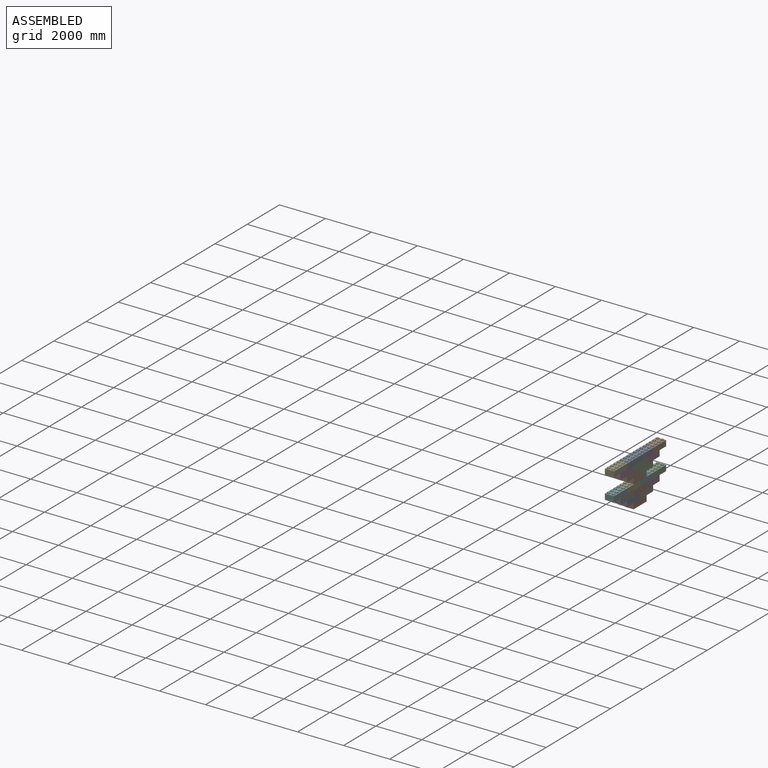
[diagram: assembled view]
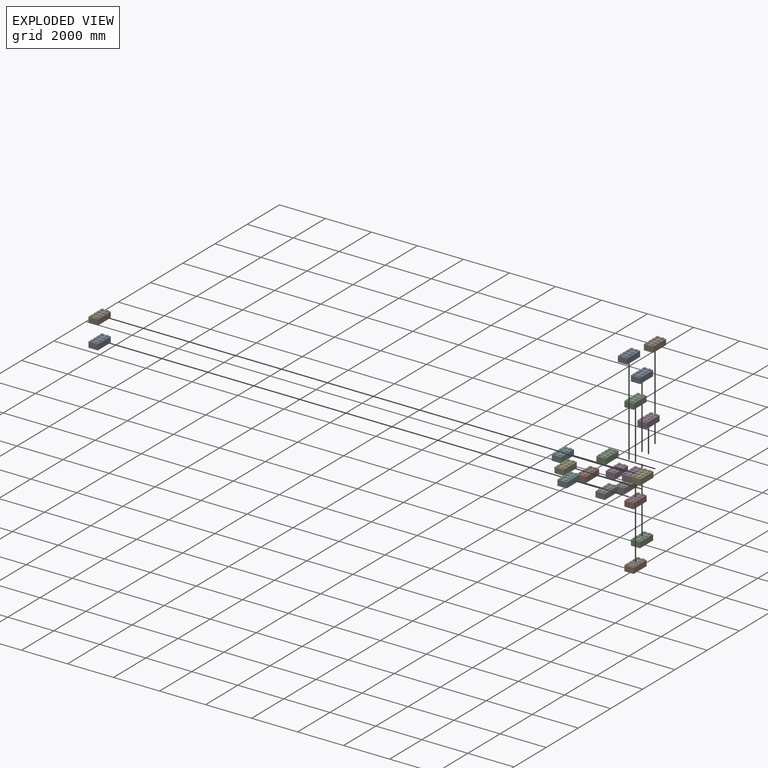
[diagram: exploded view]
GUIDED TOUR — MATED ASSEMBLY (Onshape document 4910fcf96426b830cf68da31, AutoMate assembly 4910fcf96426b830cf68da31_169cb95e6ca24b841145fe51_fd81afee6534b060b8154826_default)

This assembly has 20 components, labeled P0..P19 below (a component is one placed occurrence of a part; the same part can appear more than once), held together by 18 mates. A mate is a constraint between two components; its type names the relative motion it leaves free:
  PLANAR — leaves sliding in the plane through the listed point (normal = the listed direction) and rotation about that normal free.
Axis/direction vectors are unit vectors and 'through' points are millimeter coordinates, both in the assembly's world frame.

MATES
  1. PLANAR "Planar 8": P12 <-> P7, direction (0.000, 0.000, -1.000) through (38.89, 1657.74, 1354.56) mm
  2. PLANAR "Planar 9": P5 <-> P6, direction (0.000, 0.000, -1.000) through (38.89, 850.02, 1354.56) mm
  3. PLANAR "Planar 4": P9 <-> P10, direction (0.000, 0.000, 1.000) through (40.08, 1655.93, 2087.92) mm
  4. PLANAR "Planar 1": P2 <-> P1, direction (0.000, 0.000, -1.000) through (40.08, 2463.65, 1844.08) mm
  5. PLANAR "Planar 2": P16 <-> P15, direction (0.000, 0.000, -1.000) through (38.89, 1657.74, 866.88) mm
  6. PLANAR "Planar 2": P9 <-> P1, direction (0.000, 0.000, -1.000) through (40.08, 1655.93, 1844.08) mm
  7. PLANAR "Planar 1": P14 <-> P15, direction (0.000, 0.000, -1.000) through (38.89, 2465.46, 866.88) mm
  8. PLANAR "Planar 9": P4 <-> P19, direction (0.000, 0.000, -1.000) through (40.08, 848.21, 2331.76) mm
  9. PLANAR "Planar 5": P9 <-> P9, direction (0.000, 0.000, 1.000) through (40.08, 1655.93, 2087.92) mm
  10. PLANAR "Planar 7": P13 <-> P7, direction (0.000, 0.000, -1.000) through (38.89, 2465.46, 1354.56) mm
  11. PLANAR "Planar 3": P2 <-> P3, direction (0.000, 0.000, 1.000) through (40.08, 2463.65, 2087.92) mm
  12. PLANAR "Planar 7": P0 <-> P10, direction (0.000, 0.000, -1.000) through (40.08, 2463.65, 2331.76) mm
  13. PLANAR "Planar 8": P8 <-> P10, direction (0.000, 0.000, -1.000) through (40.08, 1655.93, 2331.76) mm
  14. PLANAR "Planar 6": P17 <-> P3, direction (0.000, 0.000, -1.000) through (40.08, 3271.37, 2331.76) mm
  15. PLANAR "Planar 6": P18 <-> P11, direction (0.000, 0.000, -1.000) through (38.89, 3273.18, 1354.56) mm
  16. PLANAR "Planar 5": P16 <-> P16, direction (0.000, 0.000, 1.000) through (38.89, 1657.74, 1110.72) mm
  17. PLANAR "Planar 4": P16 <-> P7, direction (0.000, 0.000, 1.000) through (38.89, 1657.74, 1110.72) mm
  18. PLANAR "Planar 3": P14 <-> P11, direction (0.000, 0.000, 1.000) through (38.89, 2465.46, 1110.72) mm

ASSEMBLY ORDER
  1. P15 — the base component [order verified]
  2. P14 [order verified]
  3. P16 [order verified]
  4. P6 [order verified]
  5. P7 [order verified]
  6. P11 [order verified]
  7. P5 [order verified]
  8. P12 [order verified]
  9. P13 [order verified]
  10. P18 [order verified]
  11. P1 [order verified]
  12. P2 [order verified]
  13. P9 [order verified]
  14. P3 [order verified]
  15. P10 [order verified]
  16. P19 [order verified]
  17. P0 [order verified]
  18. P4 [order verified]
  19. P8 [order verified]
  20. P17 [order verified]
Order-tag legend:
  [order verified] — this step's position reverses a verified removal order: the component was checked to insert without passing through the ones already placed.

Of the 20 components, 20 carry the full construction recipe — the FeatureScript program that regenerates the part's solid from scratch; the rest are supplied as boundary geometry only.
Because this assembly has more than 12 components, the tour below covers the 12 most significant ones individually (every recipe-attached component first, then the largest by part volume), in assembly order; the remaining 8 are summarized together in a grouped section at the end.
Each toured component is shown spotlighted twice — in the assembled view, then in the exploded view, where a leader line traces a displaced component back to its assembled socket (saturated green if recipe-attached, orange if geometry-only; every other component desaturated gray) — followed by its recipe or geometry summary and the mates that hold it.
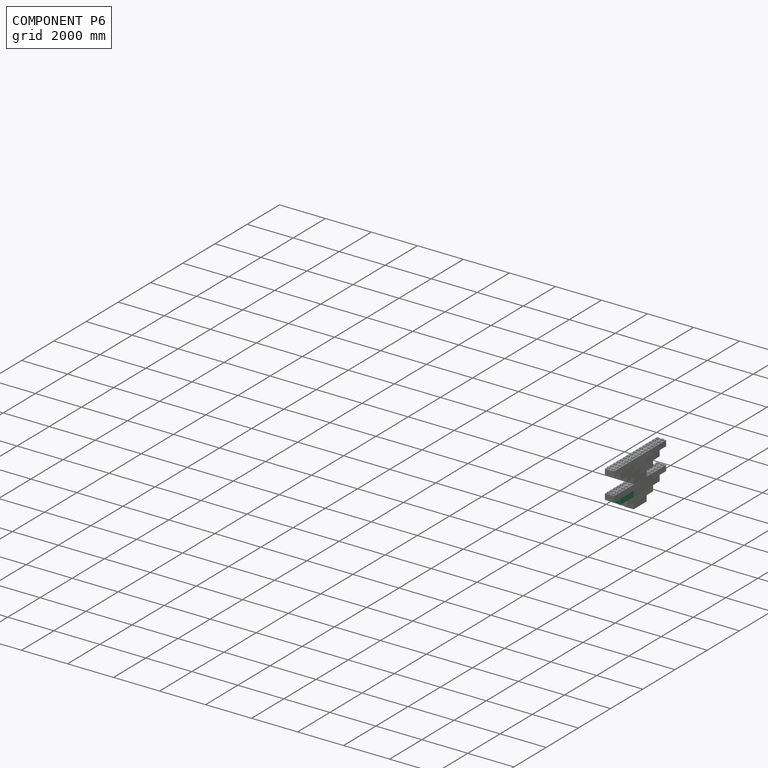
[diagram: component P6 — assembled]
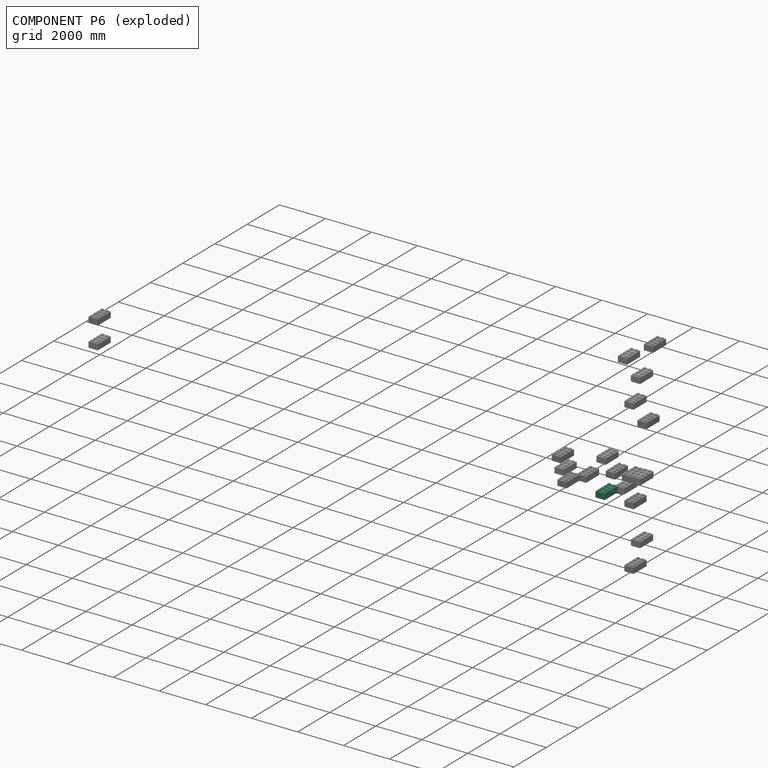
[diagram: component P6 — exploded]
COMPONENT P6 — same part as P0 (CADFS 00433519); its construction recipe is shown at P0.
Held by: PLANAR mate "Planar 9" to P5.
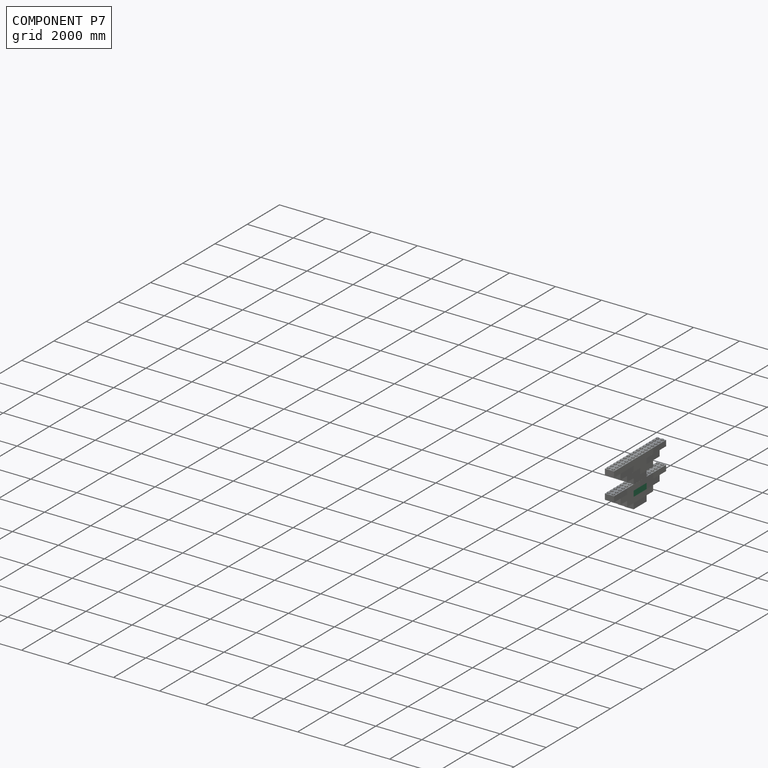
[diagram: component P7 — assembled]
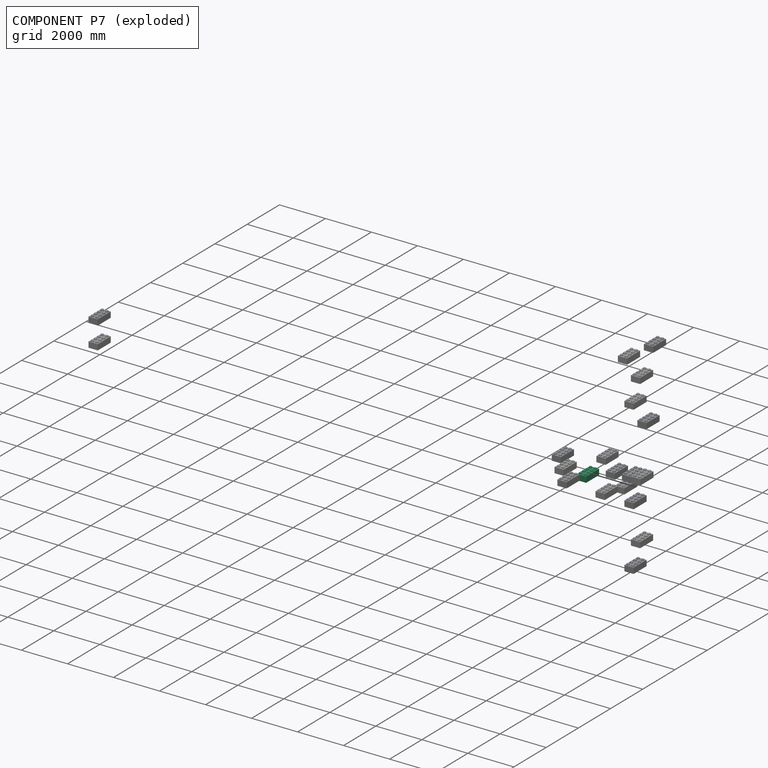
[diagram: component P7 — exploded]
COMPONENT P7 — same part as P0 (CADFS 00433519); its construction recipe is shown at P0.
Held by: PLANAR mate "Planar 8" to P12; PLANAR mate "Planar 7" to P13; PLANAR mate "Planar 4" to P16.
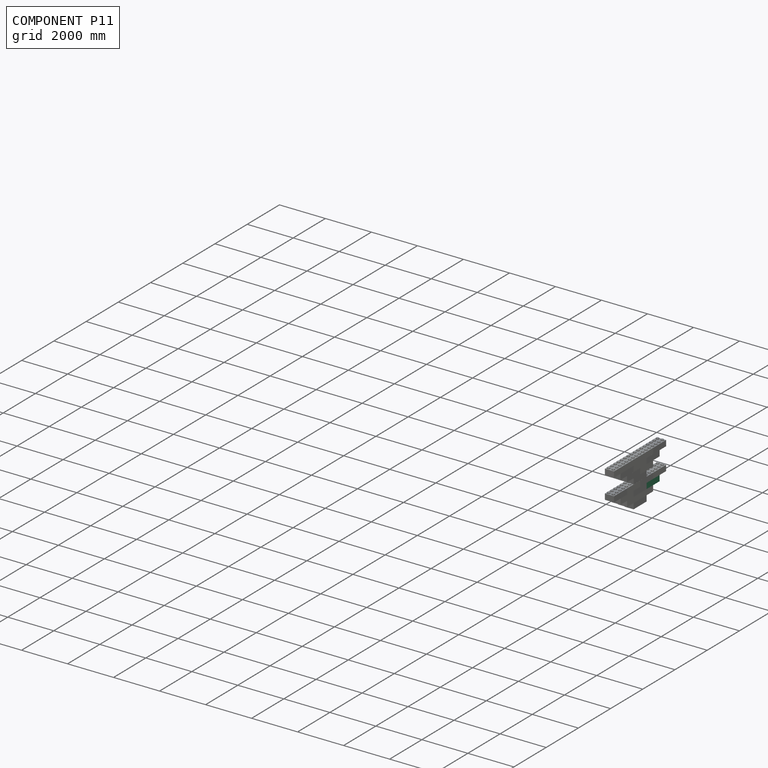
[diagram: component P11 — assembled]
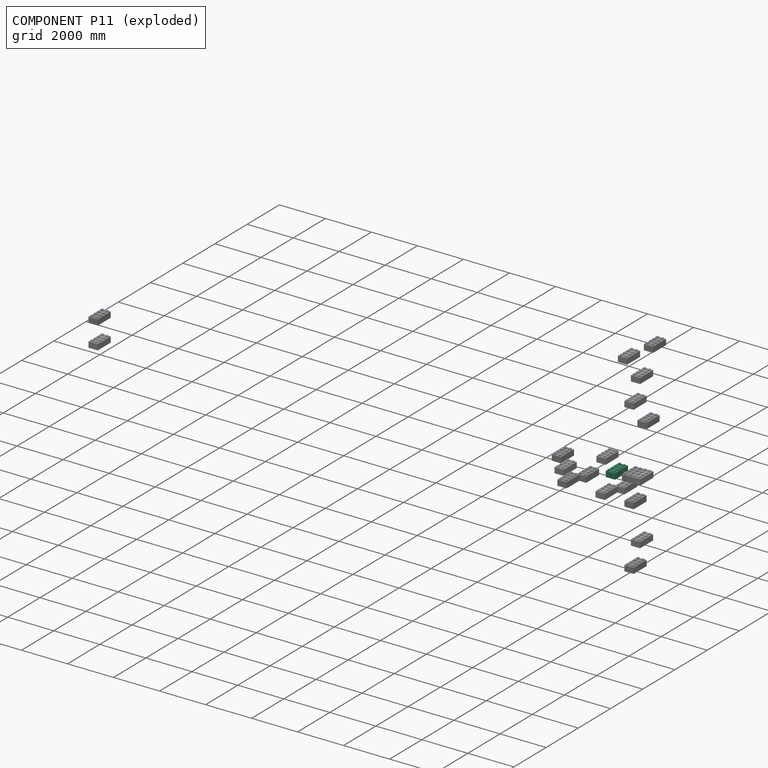
[diagram: component P11 — exploded]
COMPONENT P11 — same part as P0 (CADFS 00433519); its construction recipe is shown at P0.
Held by: PLANAR mate "Planar 6" to P18; PLANAR mate "Planar 3" to P14.
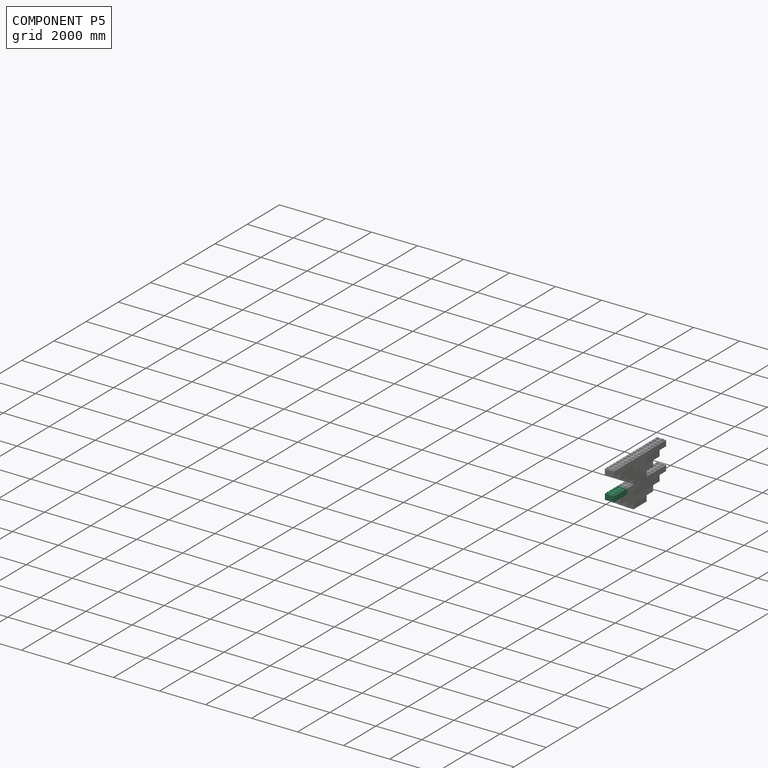
[diagram: component P5 — assembled]
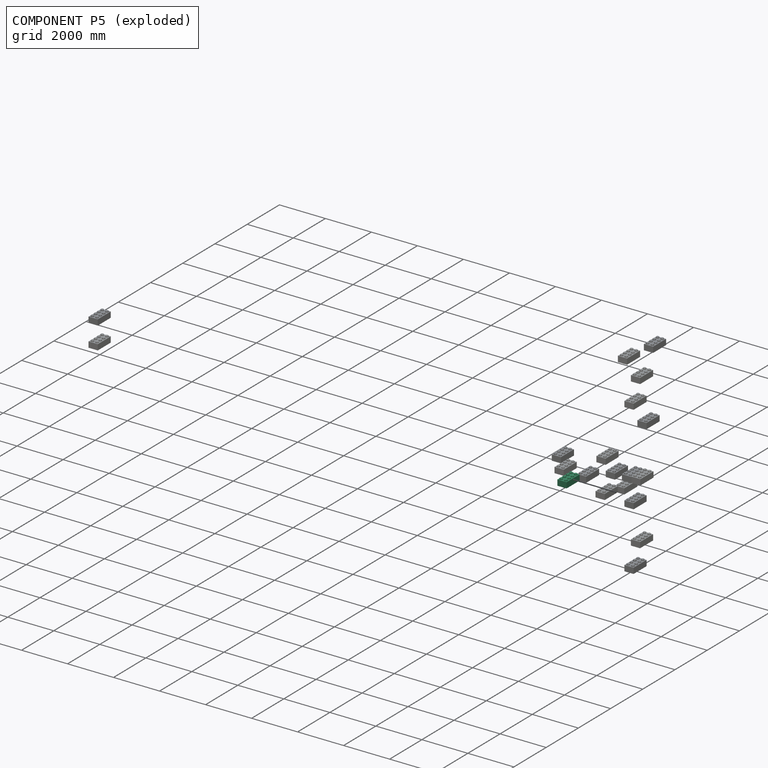
[diagram: component P5 — exploded]
COMPONENT P5 — same part as P0 (CADFS 00433519); its construction recipe is shown at P0.
Held by: PLANAR mate "Planar 9" to P6.
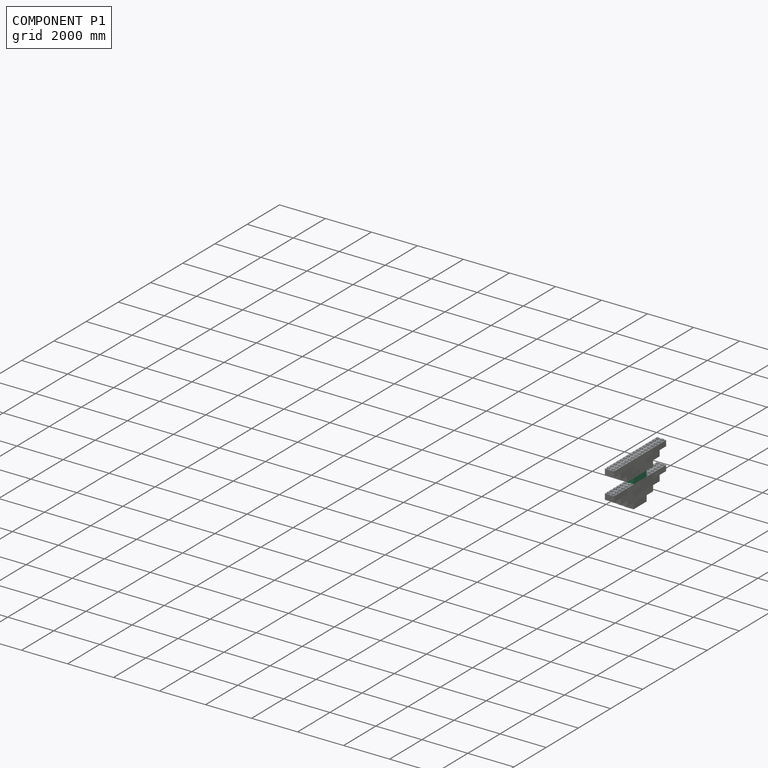
[diagram: component P1 — assembled]
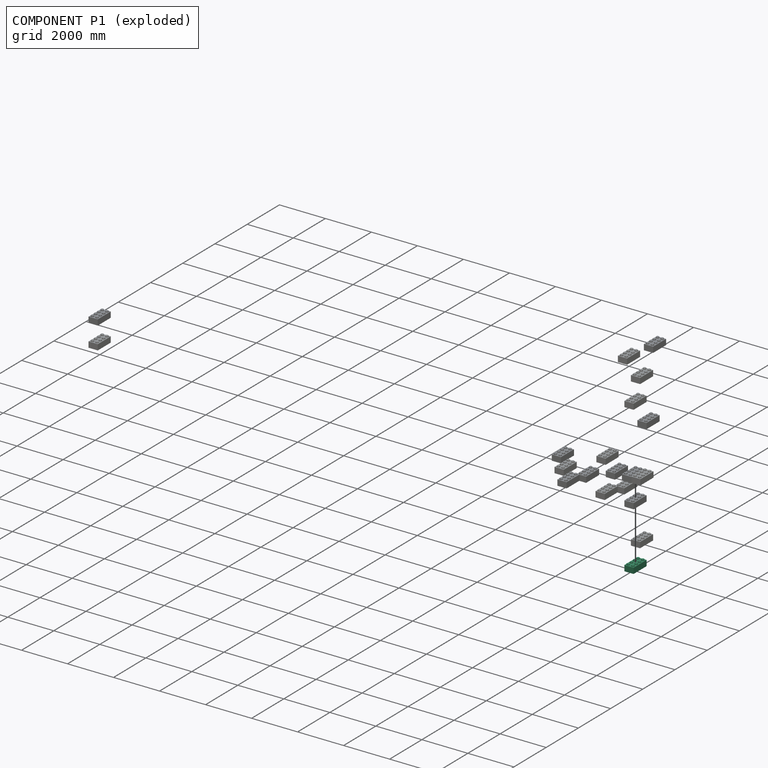
[diagram: component P1 — exploded]
COMPONENT P1 — same part as P0 (CADFS 00433519); its construction recipe is shown at P0.
Held by: PLANAR mate "Planar 1" to P2; PLANAR mate "Planar 2" to P9.
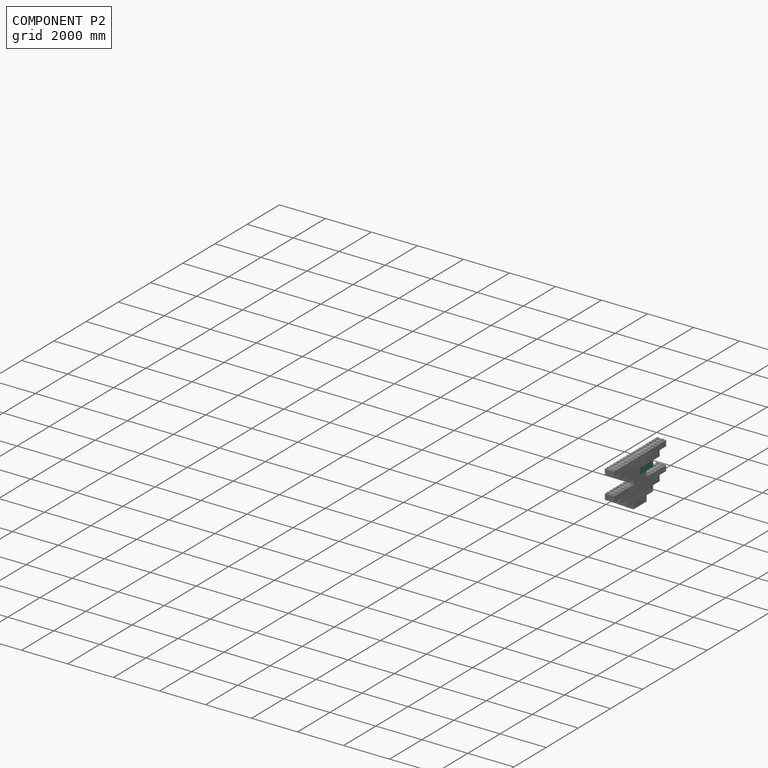
[diagram: component P2 — assembled]
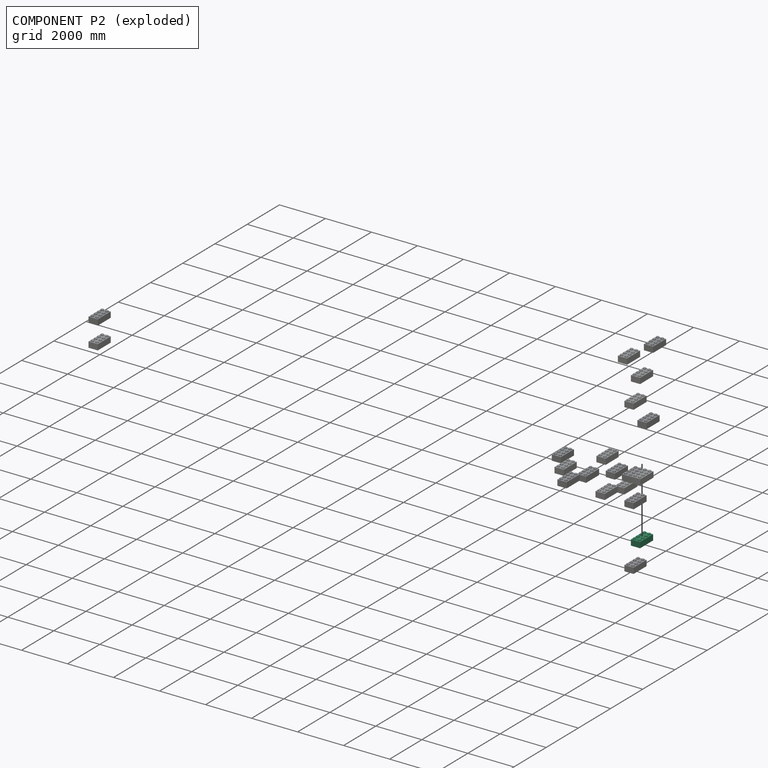
[diagram: component P2 — exploded]
COMPONENT P2 — same part as P0 (CADFS 00433519); its construction recipe is shown at P0.
Held by: PLANAR mate "Planar 1" to P1; PLANAR mate "Planar 3" to P3.
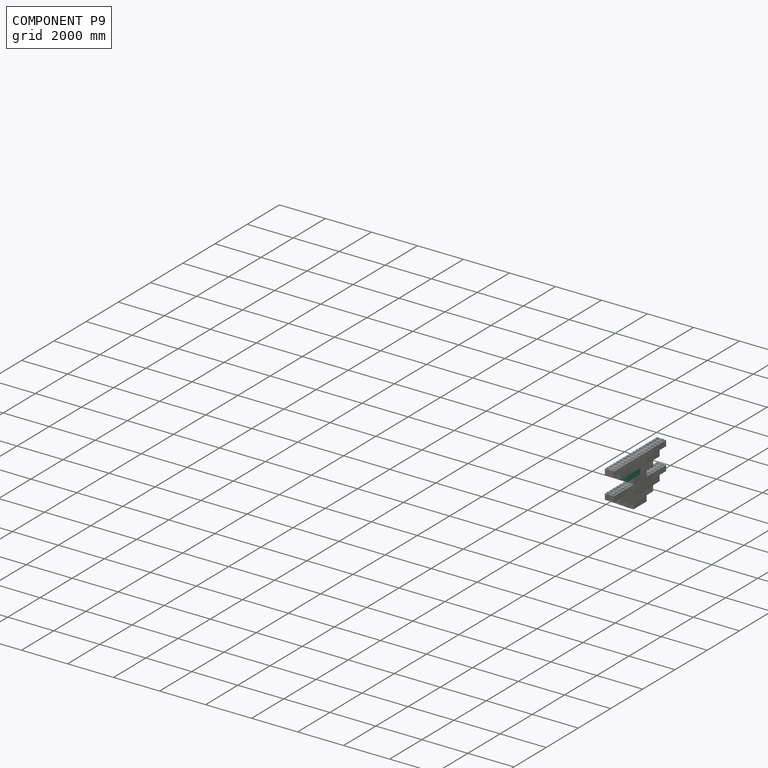
[diagram: component P9 — assembled]
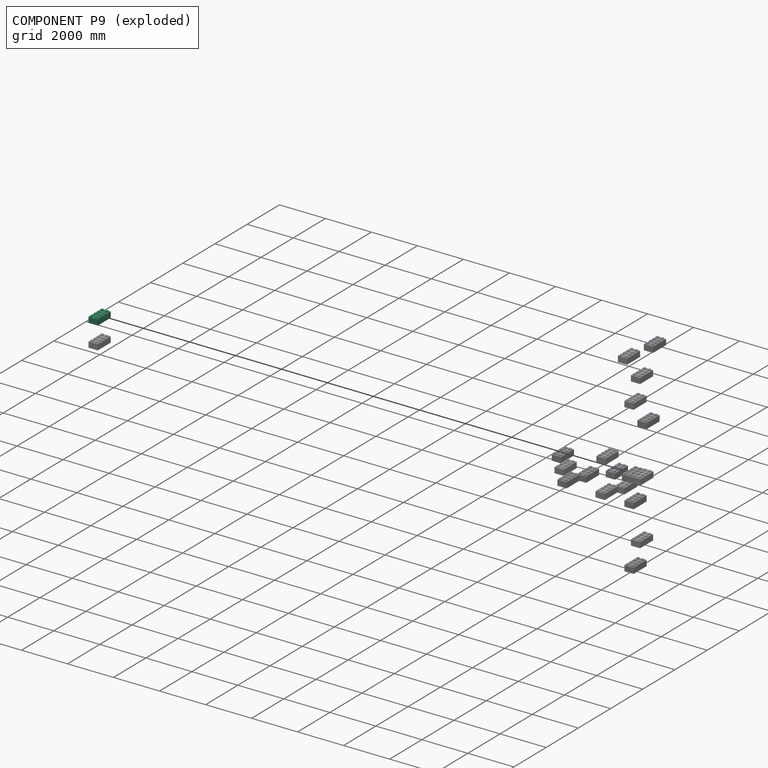
[diagram: component P9 — exploded]
COMPONENT P9 — same part as P0 (CADFS 00433519); its construction recipe is shown at P0.
Held by: PLANAR mate "Planar 4" to P10; PLANAR mate "Planar 2" to P1; PLANAR mate "Planar 5" to P9.
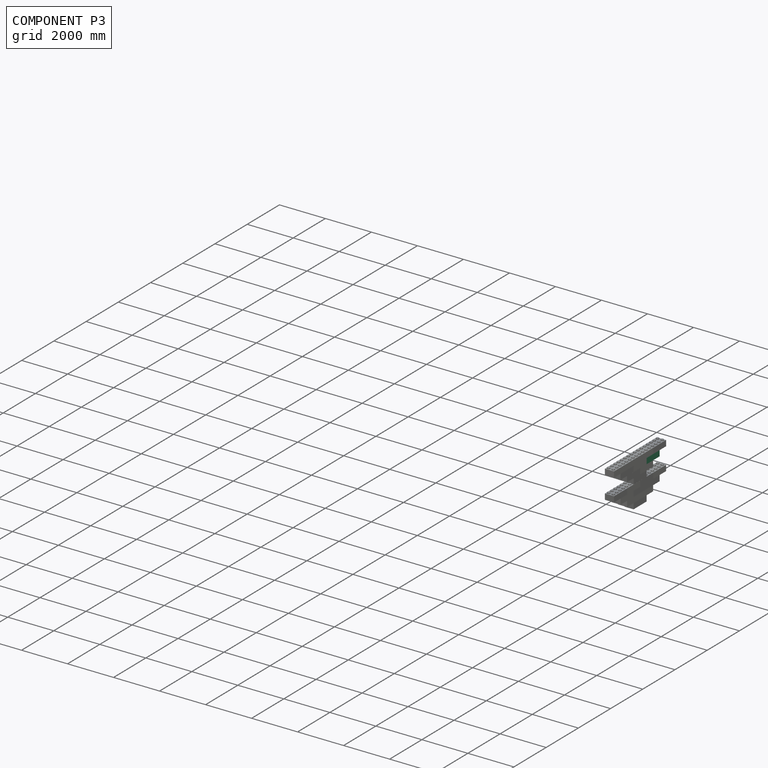
[diagram: component P3 — assembled]
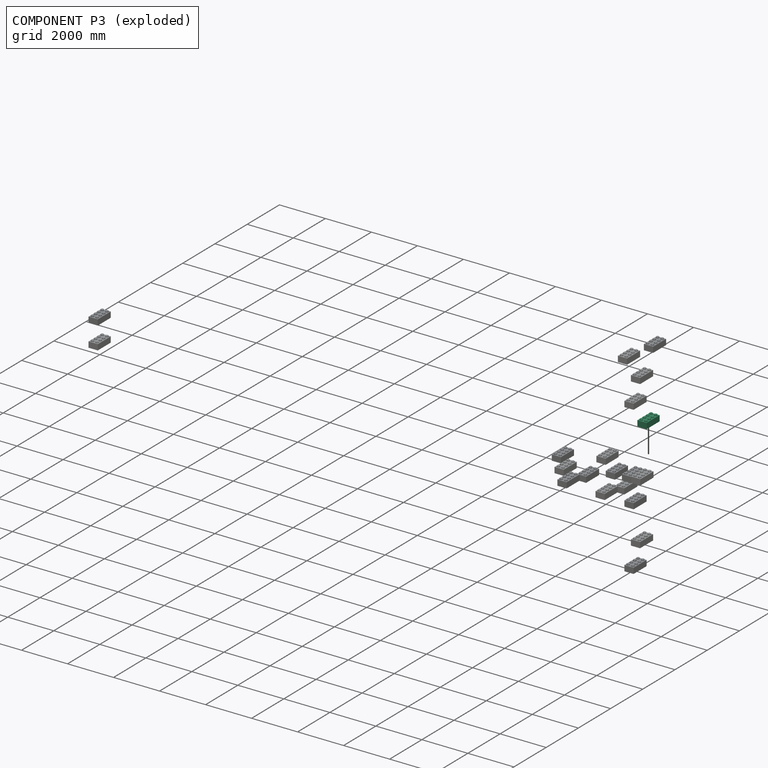
[diagram: component P3 — exploded]
COMPONENT P3 — same part as P0 (CADFS 00433519); its construction recipe is shown at P0.
Held by: PLANAR mate "Planar 3" to P2; PLANAR mate "Planar 6" to P17.
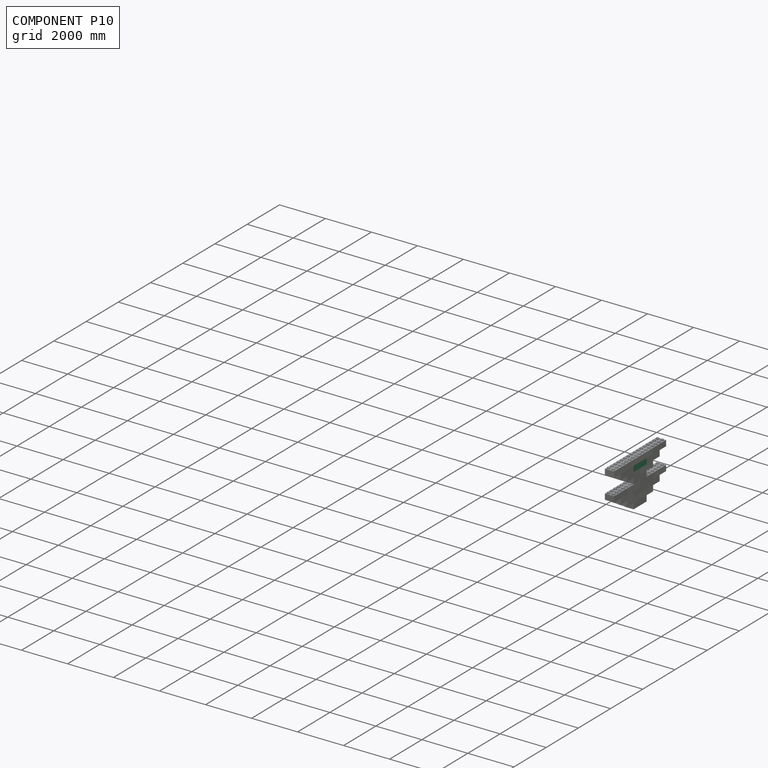
[diagram: component P10 — assembled]
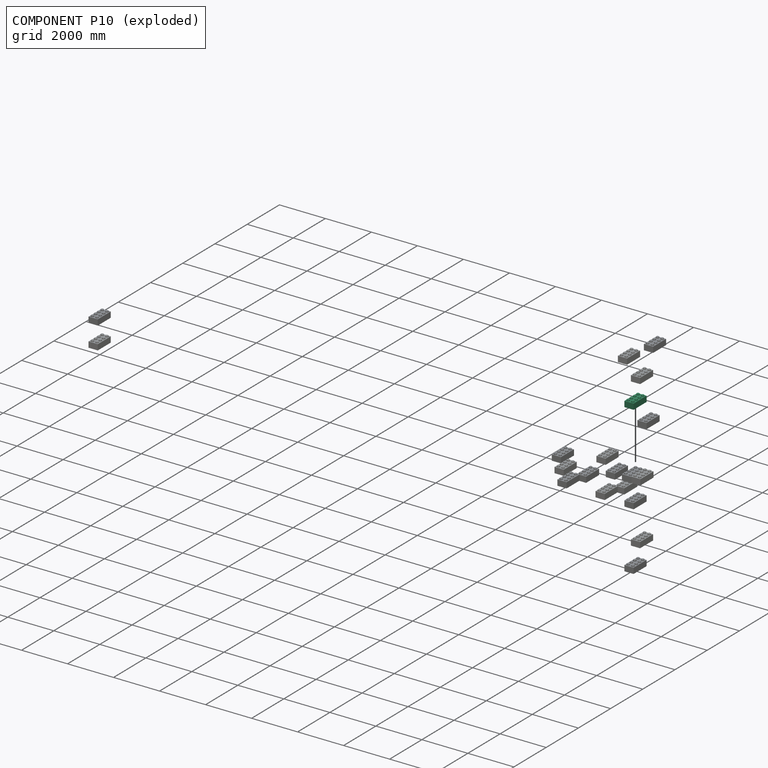
[diagram: component P10 — exploded]
COMPONENT P10 — same part as P0 (CADFS 00433519); its construction recipe is shown at P0.
Held by: PLANAR mate "Planar 4" to P9; PLANAR mate "Planar 7" to P0; PLANAR mate "Planar 8" to P8.
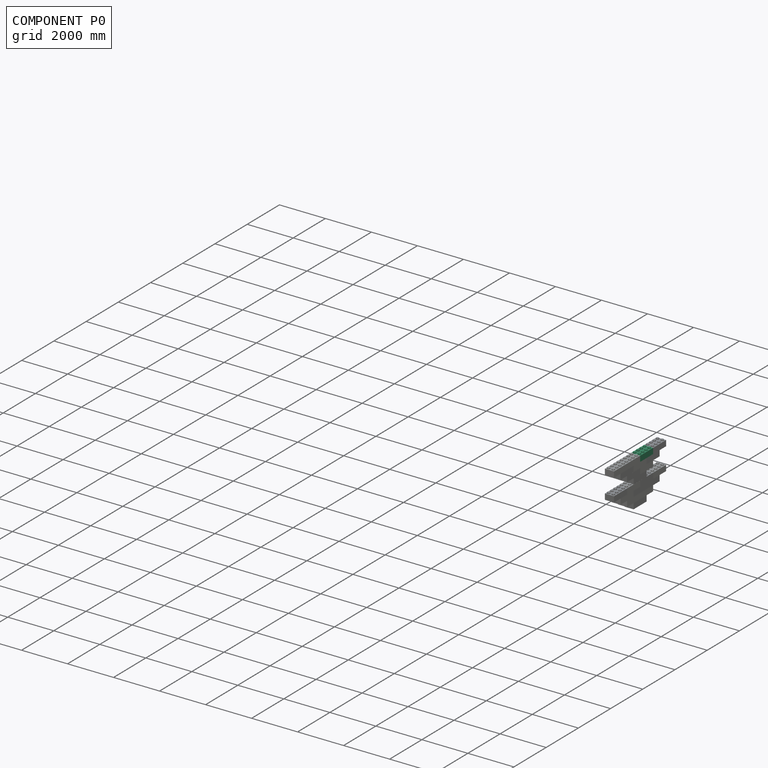
[diagram: component P0 — assembled]
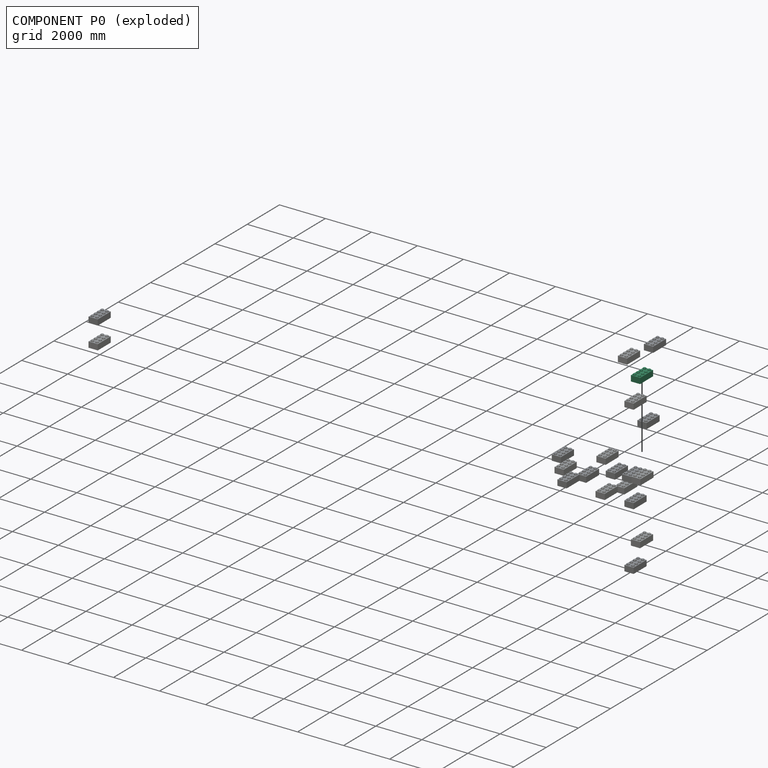
[diagram: component P0 — exploded]
COMPONENT P0 — recipe-attached (CADFS 00433519, mesh-verified: the recipe's output STEP matches this component's geometry to below the mesh-comparison resolution (tessellation chordal tolerance ~1.42 mm)).
Held by: PLANAR mate "Planar 7" to P10.
Construction recipe (FeatureScript — the CAD program that rebuilds this solid; sketch coordinates are in the units given by the * unit suffixes, e.g. mm):

FeatureScript 1511;
import(path : "onshape/std/geometry.fs", version : "1511.0");
import(path : "onshape/std/common.fs", version : "1511.0");
const mm = millimeter;
const VERTEX = EntityType.VERTEX;
const EDGE = EntityType.EDGE;
const FACE = EntityType.FACE;
const BODY = EntityType.BODY;
function v(x, y){return vector(x, y);}
function OD(order){return orderDisambiguation(order);}
function OSD(set){return originalSetDisambiguation(set);}
function TD(topology){return topologyDisambiguation(topology);}
function TDD(query){return trueDependencyDisambiguation(query);}
function sQuery(a, b, c) {return sketchEntityQuery(a, b, c);}

annotation { "Feature Type Name" : "Feature", "Feature Type Description" : "" }
export const myFeature = defineFeature(function(context is Context, id is Id, definition is map)
    precondition{}
    {
        {
            var Q0;
            Q0=qCreatedBy(makeId("Top.planeOp"),FACE);
            var sketch = newSketch(context, id + "F0", { "sketchPlane" : qUnion([Q0])});
            skLineSegment(sketch, "E0.bottom", {"start": v(-168.28, 778.9) * mm, "end": v(233.04, 778.9) * mm});
            skLineSegment(sketch, "E0.top", {"start": v(-168.28, -28.82) * mm, "end": v(233.04, -28.82) * mm});
            skLineSegment(sketch, "E0.left", {"start": v(-168.28, 778.9) * mm, "end": v(-168.28, -28.82) * mm});
            skLineSegment(sketch, "E0.right", {"start": v(233.04, 778.9) * mm, "end": v(233.04, -28.82) * mm});
            skSolve(sketch);
        }
        {
            var Q0;
            Q0=makeQuery(id+"F0.imprint","IMPRINT",FACE,{"disambiguationData":[TD([[makeQuery(id+"F0.imprint","IMPRINT",EDGE,{"derivedFrom":sQuery(id+"F0.wireOp",EDGE,"E0.bottom")}),-1.0]])]});
            extrude(context, id + "F1", {"entities" : qUnion([Q0]), "depth" : 243.84 * mm});
        }
        {
            var Q0;
            Q0=makeQuery(id+"F1.opExtrude","CAP_FACE",FACE,{"disambiguationData":[OSD([sQuery(id+"F0.wireOp",EDGE,"E0.bottom"),sQuery(id+"F0.wireOp",EDGE,"E0.top"),sQuery(id+"F0.wireOp",EDGE,"E0.left"),sQuery(id+"F0.wireOp",EDGE,"E0.right")])],"isStart":false});
            var sketch = newSketch(context, id + "F2", { "sketchPlane" : qUnion([Q0])});
            skCircle(sketch, "E1", {"center": v(-69.22, 70.24) * mm, "radius": 60.96 * mm});
            skCircle(sketch, "E2.0.1.0", {"center": v(-69.22, 273.44) * mm, "radius": 60.96 * mm});
            skCircle(sketch, "E2.0.2.0", {"center": v(-69.22, 476.64) * mm, "radius": 60.96 * mm});
            skCircle(sketch, "E2.0.3.0", {"center": v(-69.22, 679.84) * mm, "radius": 60.96 * mm});
            skCircle(sketch, "E2.1.0.0", {"center": v(133.98, 70.24) * mm, "radius": 60.96 * mm});
            skCircle(sketch, "E2.1.1.0", {"center": v(133.98, 273.44) * mm, "radius": 60.96 * mm});
            skCircle(sketch, "E2.1.2.0", {"center": v(133.98, 476.64) * mm, "radius": 60.96 * mm});
            skCircle(sketch, "E2.1.3.0", {"center": v(133.98, 679.84) * mm, "radius": 60.96 * mm});
            skLineSegment(sketch, "E2.direction1", {"start": v(-69.22, 70.24) * mm, "end": v(133.98, 70.24) * mm, "construction": true});
            skLineSegment(sketch, "E2.direction2", {"start": v(-69.22, 70.24) * mm, "end": v(-69.22, 273.44) * mm, "construction": true});
            skSolve(sketch);
        }
        {
            var Q0;
            Q0 = qSketchRegion(id + "F2", true);
            extrude(context, id + "F3", {"entities" : qUnion([Q0]), "operationType" : NewBodyOperationType.ADD, "depth" : 45.72 * mm});
        }
        {
            var Q0;
            Q0=makeQuery(id+"F1.opExtrude","CAP_FACE",FACE,{"disambiguationData":[OSD([sQuery(id+"F0.wireOp",EDGE,"E0.bottom"),sQuery(id+"F0.wireOp",EDGE,"E0.top"),sQuery(id+"F0.wireOp",EDGE,"E0.left"),sQuery(id+"F0.wireOp",EDGE,"E0.right")])],"isStart":true});
            var sketch = newSketch(context, id + "F4", { "sketchPlane" : qUnion([Q0])});
            skLineSegment(sketch, "E3.bottom", {"start": v(-137.8, -1.66) * mm, "end": v(202.56, -1.66) * mm});
            skLineSegment(sketch, "E3.top", {"start": v(-137.8, -748.42) * mm, "end": v(202.56, -748.42) * mm});
            skLineSegment(sketch, "E3.left", {"start": v(-137.8, -1.66) * mm, "end": v(-137.8, -748.42) * mm});
            skLineSegment(sketch, "E3.right", {"start": v(202.56, -1.66) * mm, "end": v(202.56, -748.42) * mm});
            skSolve(sketch);
        }
        {
            var Q0;
            Q0 = qSketchRegion(id + "F4", true);
            extrude(context, id + "F5", {"entities" : qUnion([Q0]), "operationType" : NewBodyOperationType.REMOVE, "oppositeDirection" : true, "depth" : 218.44 * mm});
        }
        {
            var Q0;
            Q0=makeQuery(id+"F5.boolean.opBoolean","COPY",FACE,{"derivedFrom":makeQuery(id+"F5.opExtrude","CAP_FACE",FACE,{"disambiguationData":[OSD([sQuery(id+"F4.wireOp",EDGE,"E3.bottom"),sQuery(id+"F4.wireOp",EDGE,"E3.top"),sQuery(id+"F4.wireOp",EDGE,"E3.left"),sQuery(id+"F4.wireOp",EDGE,"E3.right")])],"isStart":false})});
            var sketch = newSketch(context, id + "F6", { "sketchPlane" : qUnion([Q0])});
            skCircle(sketch, "E4", {"center": v(32.38, -578.24) * mm, "radius": 82.55 * mm});
            skCircle(sketch, "E5.0.1.0", {"center": v(32.38, -375.04) * mm, "radius": 82.55 * mm});
            skCircle(sketch, "E5.0.2.0", {"center": v(32.38, -171.84) * mm, "radius": 82.55 * mm});
            skLineSegment(sketch, "E5.direction1", {"start": v(32.38, -578.24) * mm, "end": v(57.78, -578.24) * mm, "construction": true});
            skLineSegment(sketch, "E5.direction2", {"start": v(32.38, -578.24) * mm, "end": v(32.38, -375.04) * mm, "construction": true});
            skSolve(sketch);
        }
        {
            var Q0;
            Q0 = qSketchRegion(id + "F6", true);
            extrude(context, id + "F7", {"entities" : qUnion([Q0]), "operationType" : NewBodyOperationType.ADD, "depth" : 213.36 * mm});
        }
        {
            var Q0;
            Q0=makeQuery(id+"F7.opExtrude","CAP_FACE",FACE,{"disambiguationData":[OSD([sQuery(id+"F6.wireOp",EDGE,"E5.0.2.0")])],"isStart":false});
            var sketch = newSketch(context, id + "F8", { "sketchPlane" : qUnion([Q0])});
            skCircle(sketch, "E6", {"center": v(32.38, -171.84) * mm, "radius": 60.96 * mm});
            skCircle(sketch, "E7.0.1.0", {"center": v(32.38, -375.04) * mm, "radius": 60.96 * mm});
            skCircle(sketch, "E7.0.2.0", {"center": v(32.38, -578.24) * mm, "radius": 60.96 * mm});
            skLineSegment(sketch, "E7.direction1", {"start": v(32.38, -171.84) * mm, "end": v(57.78, -171.84) * mm, "construction": true});
            skLineSegment(sketch, "E7.direction2", {"start": v(32.38, -171.84) * mm, "end": v(32.38, -375.04) * mm, "construction": true});
            skSolve(sketch);
        }
        {
            var Q0;
            Q0 = qSketchRegion(id + "F8", true);
            extrude(context, id + "F9", {"entities" : qUnion([Q0]), "operationType" : NewBodyOperationType.REMOVE, "oppositeDirection" : true, "depth" : 203.2 * mm});
        }
    });
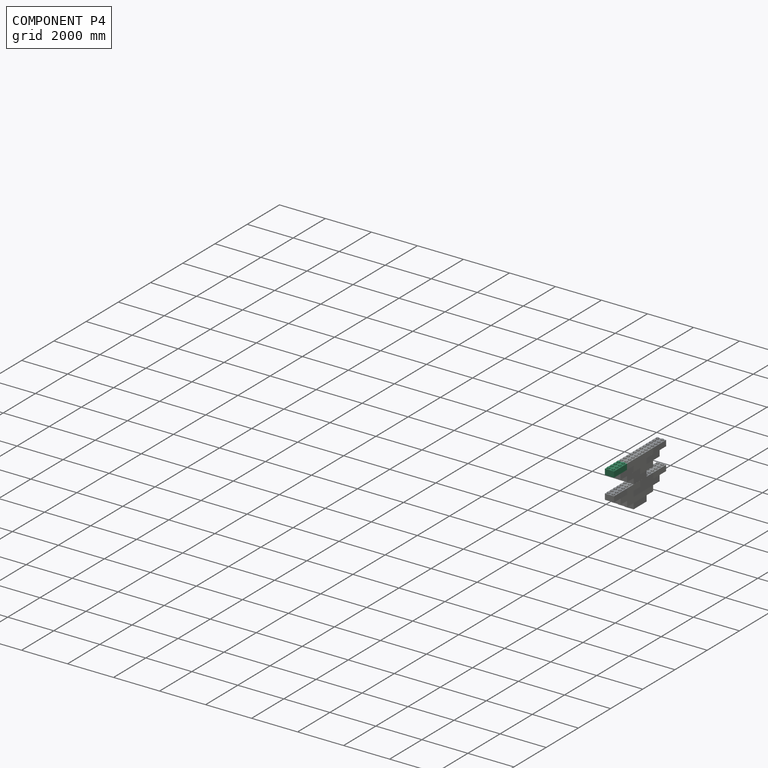
[diagram: component P4 — assembled]
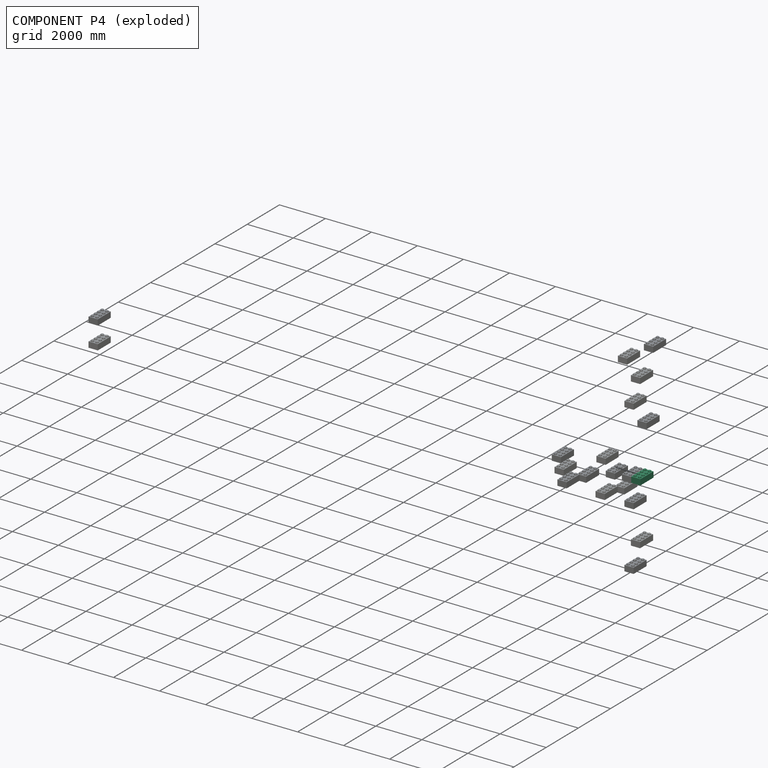
[diagram: component P4 — exploded]
COMPONENT P4 — same part as P0 (CADFS 00433519); its construction recipe is shown at P0.
Held by: PLANAR mate "Planar 9" to P19.
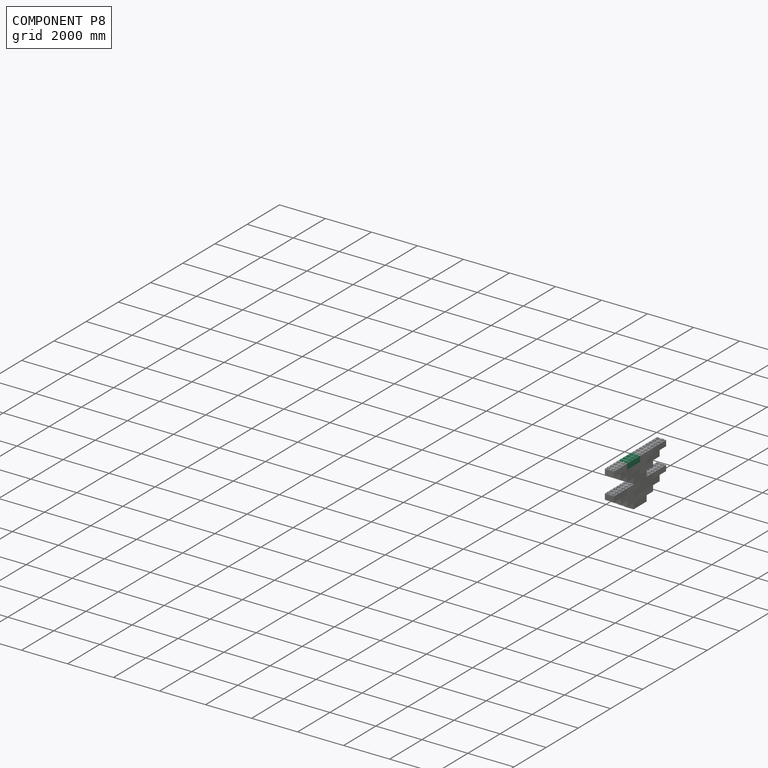
[diagram: component P8 — assembled]
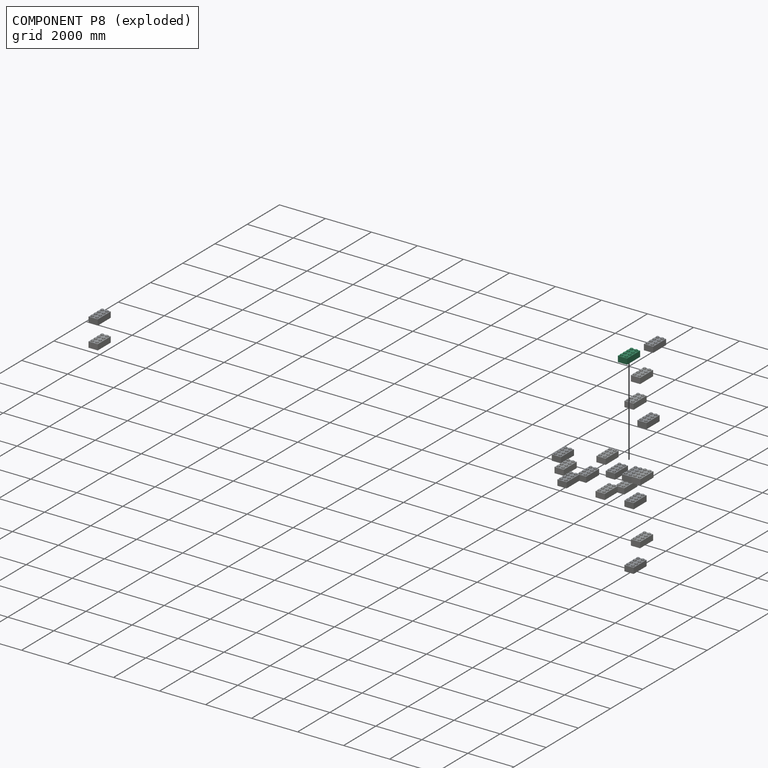
[diagram: component P8 — exploded]
COMPONENT P8 — same part as P0 (CADFS 00433519); its construction recipe is shown at P0.
Held by: PLANAR mate "Planar 8" to P10.
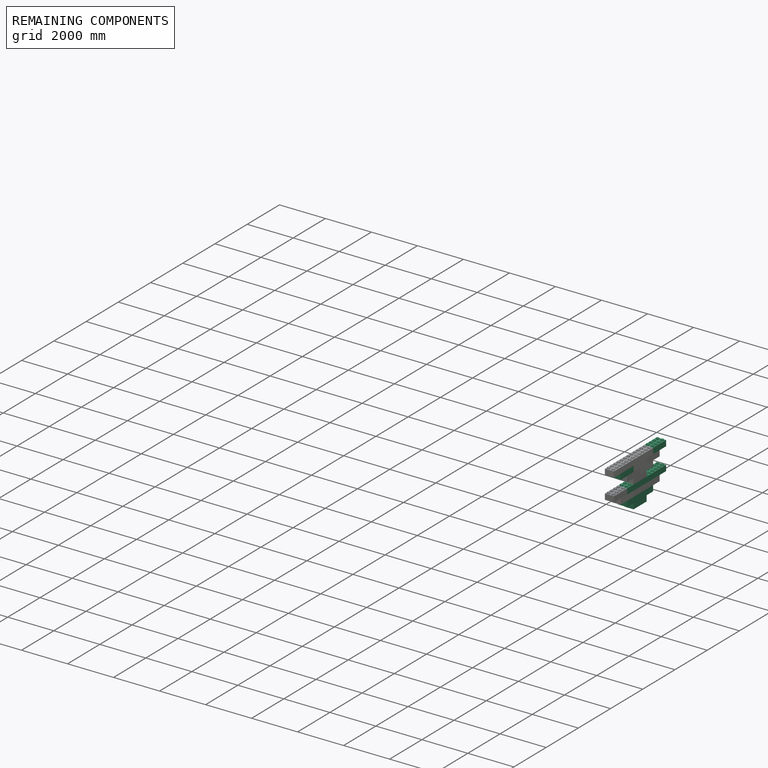
[diagram: remaining components — assembled]
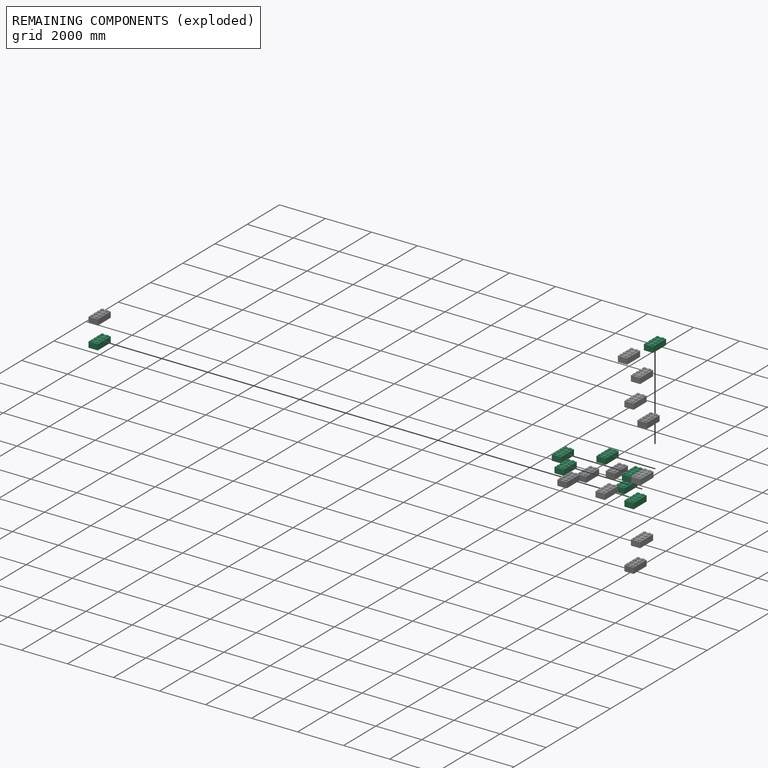
[diagram: remaining components — exploded]
REMAINING COMPONENTS (grouped) — the 8 components below fall outside the per-component tour by the significance rule stated above; both spotlight views highlight the whole group.
  P15: bounding box 807.7 x 401.3 x 289.6 mm, volume 34377830 mm^3. Recipe-attached (CADFS 00433519; recipe not printed under the significance rule). Held by: PLANAR mate "Planar 2" to P16; PLANAR mate "Planar 1" to P14.
  P14: bounding box 807.7 x 401.3 x 289.6 mm, volume 34377830 mm^3. Recipe-attached (CADFS 00433519; recipe not printed under the significance rule). Held by: PLANAR mate "Planar 1" to P15; PLANAR mate "Planar 3" to P11.
  P16: bounding box 807.7 x 401.3 x 289.6 mm, volume 34377830 mm^3. Recipe-attached (CADFS 00433519; recipe not printed under the significance rule). Held by: PLANAR mate "Planar 2" to P15; PLANAR mate "Planar 5" to P16; PLANAR mate "Planar 4" to P7.
  P12: bounding box 807.7 x 401.3 x 289.6 mm, volume 34377830 mm^3. Recipe-attached (CADFS 00433519; recipe not printed under the significance rule). Held by: PLANAR mate "Planar 8" to P7.
  P13: bounding box 807.7 x 401.3 x 289.6 mm, volume 34377830 mm^3. Recipe-attached (CADFS 00433519; recipe not printed under the significance rule). Held by: PLANAR mate "Planar 7" to P7.
  P18: bounding box 807.7 x 401.3 x 289.6 mm, volume 34377830 mm^3. Recipe-attached (CADFS 00433519; recipe not printed under the significance rule). Held by: PLANAR mate "Planar 6" to P11.
  P19: bounding box 807.7 x 401.3 x 289.6 mm, volume 34377830 mm^3. Recipe-attached (CADFS 00433519; recipe not printed under the significance rule). Held by: PLANAR mate "Planar 9" to P4.
  P17: bounding box 807.7 x 401.3 x 289.6 mm, volume 34377830 mm^3. Recipe-attached (CADFS 00433519; recipe not printed under the significance rule). Held by: PLANAR mate "Planar 6" to P3.
PROVENANCE & LICENSES
Assembly (occurrences, transforms, mates, per-part STEP geometry): AutoMate dataset, Zenodo record 7776208, CC0.
Construction recipes: CADFS (HuggingFace VladPyatov/CADFS, CC-BY-4.0, layered over the ABC dataset), FeatureScript reconstruction programs keyed by ABC model id.
Join: ABC meta listings map ABC model id -> Onshape documentId; within a shared document, parts are matched by geometric signature (bounding-box dims + volume at 0.1% relative tolerance, exact B-rep face/solid counts).
Verification: 20 of this assembly's 20 components carry a recipe attachment, and every attachment is mesh-verified: the CADFS STEP and the AutoMate member STEP were compared as meshes in their shared local frame (symmetric sampled-point-to-mesh distance); worst across the 20 attachments: below the mesh-comparison resolution (tessellation chordal tolerance ~1.42 mm) on a 947 mm part.
Renders: orthographic iso camera (az 35 / el 25); the floor grid conveys scale (grid pitch printed in each image; no ruler). In the exploded view each component is displaced by its stored offset vector: the offsets alone carry the explosion direction (mate normal/axis signs are not orientation cues and do not encode it), and separation distances are assigned per mate-chain, not proportionally to assembly-order depth.
